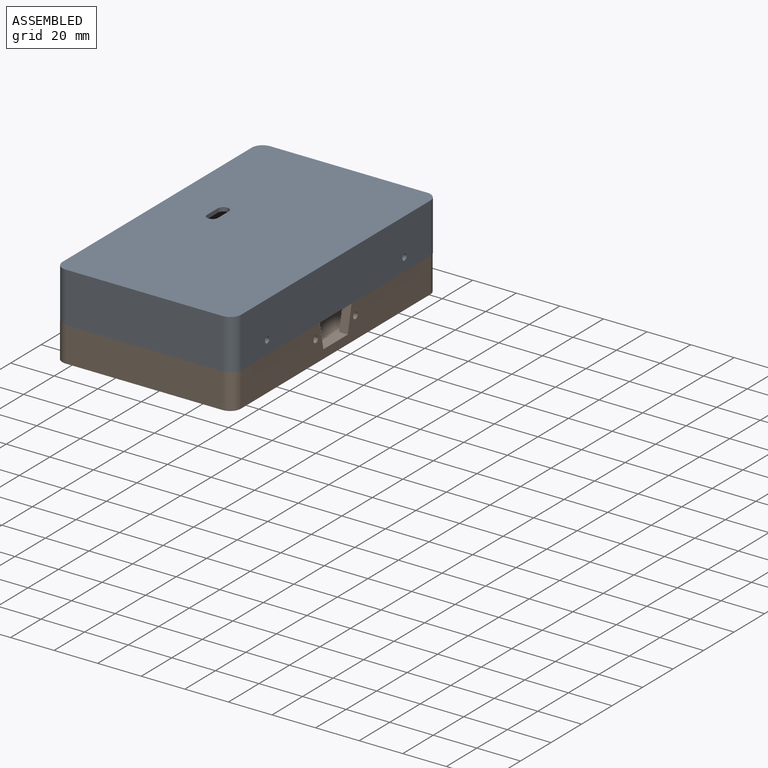
[diagram: assembled view]
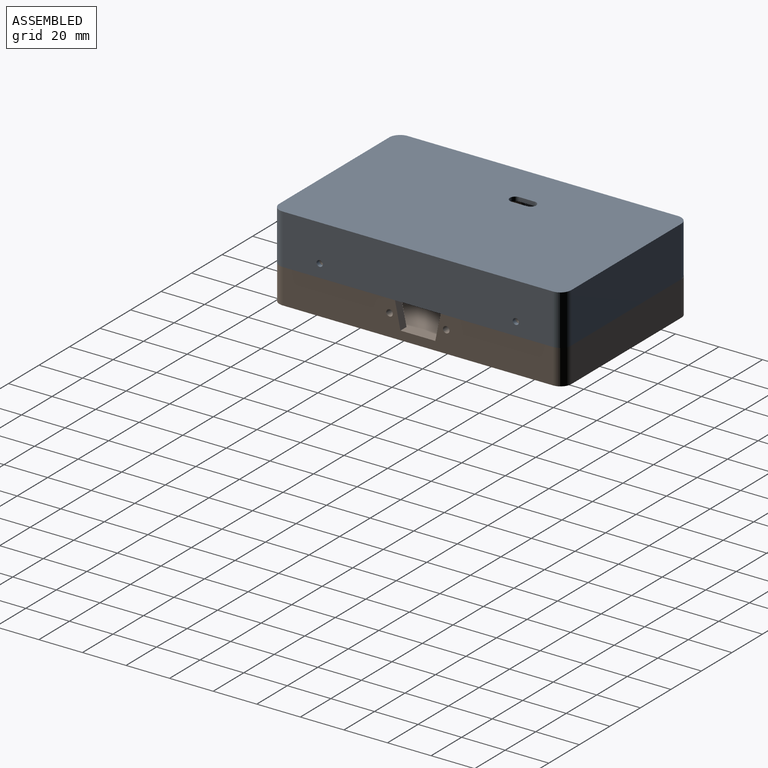
[diagram: assembled view, second angle]
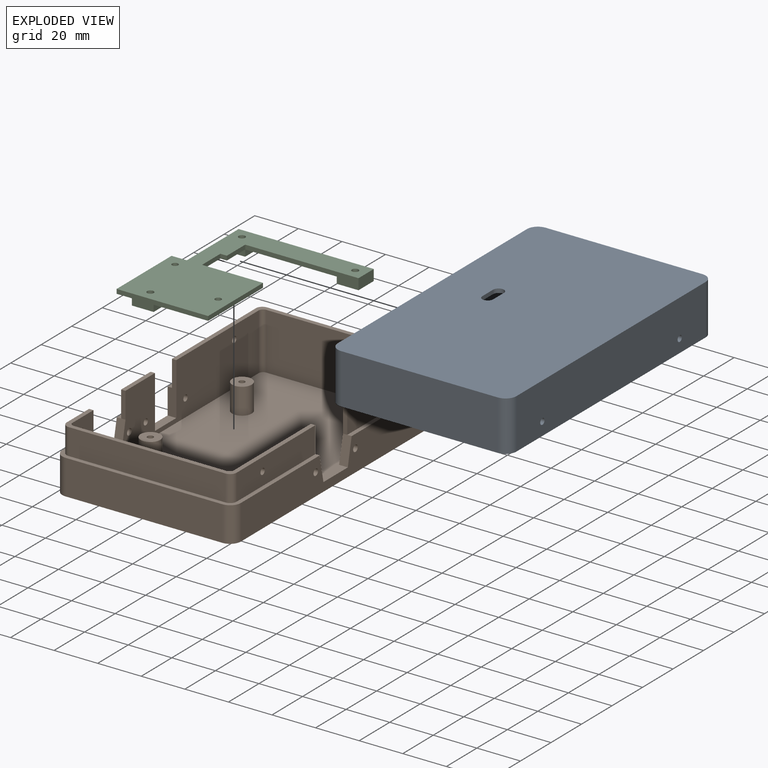
[diagram: exploded view]
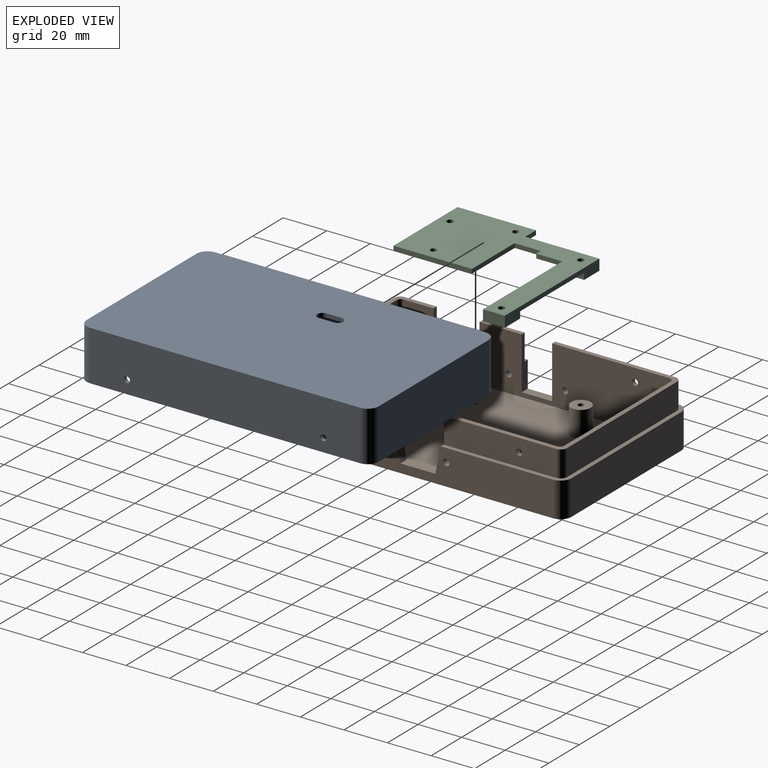
[diagram: exploded view, second angle]
ASSEMBLY  parts=3 mates=2
PART A: 27 faces, bbox 82x134x23 mm
  f0: plane 130.2x78.2mm, normal (0,0,1), area 10118.8mm2, adj f11,f12,f13,f14,f15,f16,f17,f18
  f1: plane 134x82mm, normal (0,0,-1), area 10911.9mm2, adj f2,f3,f4,f5,f6,f7,f8,f9
  f2: plane 124x23mm, normal (1,0,0), area 2839.7mm2, adj f1,f3,f9,f10,f25,f26
  f3: cylinder r=5mm len=23mm, axis (0,0,-1), area 180.6mm2, adj f1,f2,f4,f10
  f4: plane 72x23mm, normal (0,1,0), area 1656mm2, adj f1,f3,f5,f10
  f5: cylinder r=5mm len=23mm, axis (0,0,-1), area 180.6mm2, adj f1,f4,f6,f10
  f6: plane 124x23mm, normal (-1,0,0), area 2839.7mm2, adj f1,f5,f7,f10,f23,f24
  f7: cylinder r=5mm len=23mm, axis (0,0,-1), area 180.6mm2, adj f1,f6,f8,f10
  f8: plane 72x23mm, normal (0,-1,0), area 1656mm2, adj f1,f7,f9,f10
  f9: cylinder r=5mm len=23mm, axis (0,0,-1), area 180.6mm2, adj f1,f2,f8,f10
  f10: plane 134x82mm, normal (0,0,1), area 793.1mm2, adj f2,f3,f4,f5,f6,f7,f8,f9
  f11: plane 124x21.1mm, normal (-1,0,0), area 2604.1mm2, adj f0,f10,f12,f18,f25,f26
  f12: cylinder r=3.1mm len=21.1mm, axis (0,0,-1), area 102.7mm2, adj f0,f10,f11,f13
  f13: plane 72x21.1mm, normal (0,-1,0), area 1519.2mm2, adj f0,f10,f12,f14
  f14: cylinder r=3.1mm len=21.1mm, axis (0,0,-1), area 102.7mm2, adj f0,f10,f13,f15
  f15: plane 124x21.1mm, normal (1,0,0), area 2604.1mm2, adj f0,f10,f14,f16,f23,f24
  f16: cylinder r=3.1mm len=21.1mm, axis (0,0,-1), area 102.7mm2, adj f0,f10,f15,f17
  f17: plane 72x21.1mm, normal (0,1,0), area 1519.2mm2, adj f0,f10,f16,f18
  f18: cylinder r=3.1mm len=21.1mm, axis (0,0,-1), area 102.7mm2, adj f0,f10,f11,f17
  f19: cylinder r=2.5mm len=5mm, axis (0,0,1), area 14.9mm2, adj f0,f1,f20,f22
  f20: plane 7x1.9mm, normal (1,0,0), area 13.3mm2, adj f0,f1,f19,f21
  f21: cylinder r=2.5mm len=5mm, axis (0,0,1), area 14.9mm2, adj f0,f1,f20,f22
  f22: plane 7x1.9mm, normal (-1,0,0), area 13.3mm2, adj f0,f1,f19,f21
  f23: cylinder r=1.4mm len=2.8mm, axis (-1,0,0), area 16.7mm2, adj f6,f15
  f24: cylinder r=1.4mm len=2.8mm, axis (-1,0,0), area 16.7mm2, adj f6,f15
  f25: cylinder r=1.4mm len=2.8mm, axis (1,0,0), area 16.7mm2, adj f2,f11
  f26: cylinder r=1.4mm len=2.8mm, axis (1,0,0), area 16.7mm2, adj f2,f11
PART B: 74 faces, bbox 82x134x28 mm
  f0: plane 78x58mm, normal (0,0,1), area 370.9mm2, adj f5,f7,f31,f32,f33,f35,f36,f37
  f1: plane 82x56.5mm, normal (0,0,1), area 301.5mm2, adj f2,f8,f34,f39,f40,f41,f44,f45
  f2: plane 51.5x12mm, normal (1,0,0), area 611.8mm2, adj f1,f3,f34,f65,f72
  f3: plane 78x54.5mm, normal (0,0,1), area 290.2mm2, adj f2,f5,f28,f29,f30,f34,f39,f40
  f4: plane 19.33x2mm, normal (0,0,1), area 38.7mm2, adj f5,f6,f53,f54
  f5: plane 122x26mm, normal (1,0,0), area 2323.2mm2, adj f0,f3,f4,f11,f30,f31,f51,f52
  f6: plane 19.33x12mm, normal (-1,0,0), area 231.9mm2, adj f4,f9,f53,f54
  f7: plane 55x12mm, normal (-1,0,0), area 653.8mm2, adj f0,f10,f38,f51,f64
  f8: plane 124x16mm, normal (-1,0,0), area 1567.5mm2, adj f1,f9,f10,f43,f46,f47,f51,f52
  f9: plane 19.33x2mm, normal (0,0,1), area 38.7mm2, adj f6,f8,f53,f55
  f10: plane 82x60mm, normal (0,0,1), area 382.1mm2, adj f7,f8,f35,f36,f37,f38,f47,f48
  f11: plane 126x74mm, normal (0,0,1), area 9066.1mm2, adj f5,f12,f14,f16,f18,f28,f29,f30
  f12: cylinder r=4.5mm len=12mm, axis (0,0,-1), area 339.3mm2, adj f11,f13
  f13: plane 9x9mm, normal (0,0,1), area 57.9mm2, adj f12,f26
  f14: cylinder r=4.5mm len=12mm, axis (0,0,-1), area 339.3mm2, adj f11,f15
  f15: plane 9x9mm, normal (0,0,1), area 57.9mm2, adj f14,f24
  f16: cylinder r=4.5mm len=12mm, axis (0,0,-1), area 339.3mm2, adj f11,f17
  f17: plane 9x9mm, normal (0,0,1), area 57.9mm2, adj f16,f22
  f18: cylinder r=4.5mm len=12mm, axis (0,0,-1), area 339.3mm2, adj f11,f19
  f19: plane 9x9mm, normal (0,0,1), area 57.9mm2, adj f18,f20
  f20: cylinder r=1.35mm len=8mm, axis (0,0,1), area 67.9mm2, adj f19,f21
  f21: plane 2.7x2.7mm, normal (0,0,1), area 5.7mm2, adj f20
  f22: cylinder r=1.35mm len=8mm, axis (0,0,1), area 67.9mm2, adj f17,f23
  f23: plane 2.7x2.7mm, normal (0,0,1), area 5.7mm2, adj f22
  f24: cylinder r=1.35mm len=8mm, axis (0,0,1), area 67.9mm2, adj f15,f25
  f25: plane 2.7x2.7mm, normal (0,0,1), area 5.7mm2, adj f24
  f26: cylinder r=1.35mm len=8mm, axis (0,0,1), area 67.9mm2, adj f13,f27
  f27: plane 2.7x2.7mm, normal (0,0,1), area 5.7mm2, adj f26
  f28: cylinder r=2mm len=26mm, axis (0,0,-1), area 81.7mm2, adj f3,f11,f29,f42
  f29: plane 70x26mm, normal (0,1,0), area 1820mm2, adj f3,f11,f28,f30
  f30: cylinder r=2mm len=26mm, axis (0,0,-1), area 81.7mm2, adj f3,f5,f11,f29
  f31: cylinder r=2mm len=26mm, axis (0,0,-1), area 81.7mm2, adj f0,f5,f11,f32
  f32: plane 70x26mm, normal (0,-1,0), area 1820mm2, adj f0,f11,f31,f33
  f33: cylinder r=2mm len=26mm, axis (0,0,-1), area 81.7mm2, adj f0,f11,f32,f42
  f34: cylinder r=3mm len=12mm, axis (0,0,-1), area 56.5mm2, adj f1,f2,f3,f41
  f35: plane 51.5x12mm, normal (1,0,0), area 611.8mm2, adj f0,f10,f36,f66,f73
  f36: cylinder r=3mm len=12mm, axis (0,0,-1), area 56.5mm2, adj f0,f10,f35,f37
  f37: plane 72x12mm, normal (0,1,0), area 864mm2, adj f0,f10,f36,f38
  f38: cylinder r=3mm len=12mm, axis (0,0,-1), area 56.5mm2, adj f0,f7,f10,f37
  f39: plane 14.68x12mm, normal (-1,0,0), area 169.9mm2, adj f1,f3,f40,f58,f63
  f40: cylinder r=3mm len=12mm, axis (0,0,-1), area 56.5mm2, adj f1,f3,f39,f41
  f41: plane 72x12mm, normal (0,-1,0), area 864mm2, adj f1,f3,f34,f40
  f42: plane 122x26mm, normal (-1,0,0), area 2671.5mm2, adj f0,f3,f11,f28,f33,f65,f66,f67
  f43: plane 134x82mm, normal (0,0,-1), area 10966.5mm2, adj f8,f44,f45,f46,f47,f48,f49,f50
  f44: cylinder r=5mm len=16mm, axis (0,0,-1), area 125.7mm2, adj f1,f43,f45,f50
  f45: plane 72x16mm, normal (0,-1,0), area 1152mm2, adj f1,f43,f44,f46
  f46: cylinder r=5mm len=16mm, axis (0,0,-1), area 125.7mm2, adj f1,f8,f43,f45
  f47: cylinder r=5mm len=16mm, axis (0,0,-1), area 125.7mm2, adj f8,f10,f43,f48
  f48: plane 72x16mm, normal (0,1,0), area 1152mm2, adj f10,f43,f47,f49
  f49: cylinder r=5mm len=16mm, axis (0,0,-1), area 125.7mm2, adj f10,f43,f48,f50
  f50: plane 124x16mm, normal (1,0,0), area 1747.9mm2, adj f1,f10,f43,f44,f49,f67,f68,f69
  f51: plane 24x4mm, normal (0,-1,0), area 72mm2, adj f0,f5,f7,f8,f10,f52
  f52: plane 14x4mm, normal (0,0,1), area 56mm2, adj f5,f8,f51,f53
  f53: plane 24x4mm, normal (0,1,0), area 72mm2, adj f4,f5,f6,f8,f9,f52
  f54: plane 12x2mm, normal (0,-1,0), area 24mm2, adj f4,f5,f6,f55
  f55: plane 12x4mm, normal (0,-0.98,0.2), area 49mm2, adj f5,f8,f9,f54,f56
  f56: plane 16x4mm, normal (0,0,1), area 64mm2, adj f5,f8,f55,f57
  f57: plane 12x4mm, normal (0,0.98,0.2), area 49mm2, adj f1,f5,f8,f56,f58
  f58: plane 12x2mm, normal (0,1,0), area 24mm2, adj f3,f5,f39,f57
  f59: cylinder r=1.4mm len=4mm, axis (-1,0,0), area 35.2mm2, adj f5,f8
  f60: cylinder r=1.4mm len=4mm, axis (-1,0,0), area 35.2mm2, adj f5,f8
  f61: cylinder r=1.5mm len=4mm, axis (-1,0,0), area 37.7mm2, adj f5,f8
  f62: cylinder r=1.5mm len=4mm, axis (-1,0,0), area 37.7mm2, adj f5,f8
  f63: cylinder r=1.4mm len=2.8mm, axis (-1,0,0), area 17.6mm2, adj f5,f39
  f64: cylinder r=1.4mm len=2.8mm, axis (-1,0,0), area 17.6mm2, adj f5,f7
  f65: plane 12x2mm, normal (0,1,0), area 24mm2, adj f2,f3,f42,f67
  f66: plane 12x2mm, normal (0,-1,0), area 24mm2, adj f0,f35,f42,f69
  f67: plane 12x4mm, normal (0,0.98,0.2), area 49mm2, adj f1,f42,f50,f65,f68
  f68: plane 16x4mm, normal (0,0,1), area 64mm2, adj f42,f50,f67,f69
  f69: plane 12x4mm, normal (0,-0.98,0.2), area 49mm2, adj f10,f42,f50,f66,f68
  f70: cylinder r=1.5mm len=4mm, axis (1,0,0), area 37.7mm2, adj f42,f50
  f71: cylinder r=1.5mm len=4mm, axis (1,0,0), area 37.7mm2, adj f42,f50
  f72: cylinder r=1.4mm len=2.8mm, axis (1,0,0), area 17.6mm2, adj f2,f42
  f73: cylinder r=1.4mm len=2.8mm, axis (1,0,0), area 17.6mm2, adj f35,f42
PART C: 29 faces, bbox 70x69x5 mm
  f0: plane 60x42mm, normal (0,0,-1), area 1603.7mm2, adj f4,f5,f6,f7,f8,f9,f10,f11
  f1: plane 42x10mm, normal (0,0,-1), area 420mm2, adj f3,f13,f15,f17
  f2: plane 10x5mm, normal (0,1,0), area 50mm2, adj f3,f13,f14,f16
  f3: plane 62x5mm, normal (-1,0,0), area 184mm2, adj f1,f2,f4,f14,f15,f16,f17,f19
  f4: plane 34x5mm, normal (0,-1,0), area 98mm2, adj f0,f3,f5,f14,f18,f19
  f5: plane 7x2mm, normal (-1,0,0), area 14mm2, adj f0,f4,f6,f14
  f6: plane 36x2mm, normal (0,-1,0), area 72mm2, adj f0,f5,f7,f14
  f7: plane 42x5mm, normal (1,0,0), area 114mm2, adj f0,f6,f8,f14,f20,f21,f23
  f8: plane 36x2mm, normal (0,1,0), area 72mm2, adj f0,f7,f9,f14
  f9: plane 28x2mm, normal (-1,0,0), area 56mm2, adj f0,f8,f10,f14
  f10: plane 12x2mm, normal (0,1,0), area 24mm2, adj f0,f9,f11,f14
  f11: plane 3x2mm, normal (1,0,0), area 6mm2, adj f0,f10,f12,f14
  f12: plane 12x2mm, normal (0,1,0), area 24mm2, adj f0,f11,f13,f14
  f13: plane 52x5mm, normal (1,0,0), area 134mm2, adj f1,f2,f12,f14,f15,f16
  f14: plane 70x69mm, normal (0,0,1), area 2302.5mm2, adj f2,f3,f4,f5,f6,f7,f8,f9
  f15: plane 10x3mm, normal (0,-1,0), area 30mm2, adj f1,f3,f13,f16
  f16: plane 10x10mm, normal (0,0,-1), area 92.9mm2, adj f2,f3,f13,f15,f26
  f17: plane 10x3mm, normal (0,1,0), area 30mm2, adj f1,f3,f18,f19
  f18: plane 10x3mm, normal (1,0,0), area 30mm2, adj f0,f4,f17,f19
  f19: plane 10x10mm, normal (0,0,-1), area 92.9mm2, adj f3,f4,f17,f18,f25
  f20: plane 10x3mm, normal (0,1,0), area 30mm2, adj f0,f7,f22,f23
  f21: plane 10x3mm, normal (0,-1,0), area 30mm2, adj f0,f7,f22,f23
  f22: plane 10x3mm, normal (-1,0,0), area 30mm2, adj f0,f20,f21,f23
  f23: plane 10x10mm, normal (0,0,-1), area 92.9mm2, adj f7,f20,f21,f22,f24
  f24: cylinder r=1.5mm len=5mm, axis (0,0,1), area 47.1mm2, adj f14,f23
  f25: cylinder r=1.5mm len=5mm, axis (0,0,1), area 47.1mm2, adj f14,f19
  f26: cylinder r=1.5mm len=5mm, axis (0,0,1), area 47.1mm2, adj f14,f16
  f27: cylinder r=1.4mm len=2.8mm, axis (0,0,1), area 17.6mm2, adj f0,f14
  f28: cylinder r=1.4mm len=2.8mm, axis (0,0,1), area 17.6mm2, adj f0,f14
PLACE A rot(axis=(0,1,0),180deg) t=(64.08,37.39,25.68)mm
PLACE B t=(63.98,37.39,-13.32)mm
PLACE C rot(axis=(0,0,-1),90deg) t=(38.57,9.96,3.68)mm
MATE fastened C.f26 <-> B.f14  axis (0,0,-1) through (92.98,67.39,0.68)mm
MATE fastened A.f25 <-> B.f73  axis (1,0,0) through (24.98,82.39,8.68)mm
